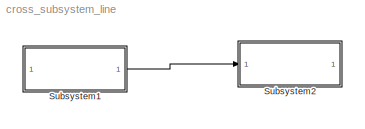
MODEL cross_subsystem_line
KIND model
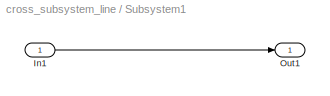
BLOCK [SubSystem] Subsystem1
  MaskHideContents = off
  MinAlgLoopOccurrences = off
  Ports = [1, 1]
  RTWSystemCode = Auto
  TreatAsAtomicUnit = off
BLOCK [Inport] Subsystem1/In1
  IconDisplay = Port number
BLOCK [Outport] Subsystem1/Out1
  BusOutputAsStruct = off
  IconDisplay = Port number
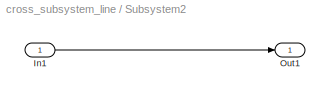
BLOCK [SubSystem] Subsystem2
  MaskHideContents = off
  MinAlgLoopOccurrences = off
  Ports = [1, 1]
  RTWSystemCode = Auto
  TreatAsAtomicUnit = off
BLOCK [Inport] Subsystem2/In1
  IconDisplay = Port number
BLOCK [Outport] Subsystem2/Out1
  BusOutputAsStruct = off
  IconDisplay = Port number
LINE Subsystem1/In1:1 -> Subsystem1/Out1:1
LINE Subsystem1:1 -> Subsystem2:1
LINE Subsystem2/In1:1 -> Subsystem2/Out1:1
